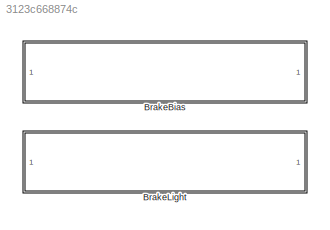
MODEL slx_3123c668874c
KIND library
CONFIG AbsTol = auto
CONFIG EnableMultiTasking = off
CONFIG FixedStep = auto
CONFIG MaxStep = auto
CONFIG MinStep = auto
CONFIG RelTol = 1e-3
CONFIG SampleTimeConstraint = Unconstrained
CONFIG SolverName = VariableStepAuto
CONFIG StartTime = 0.0
CONFIG StopTime = 10.0
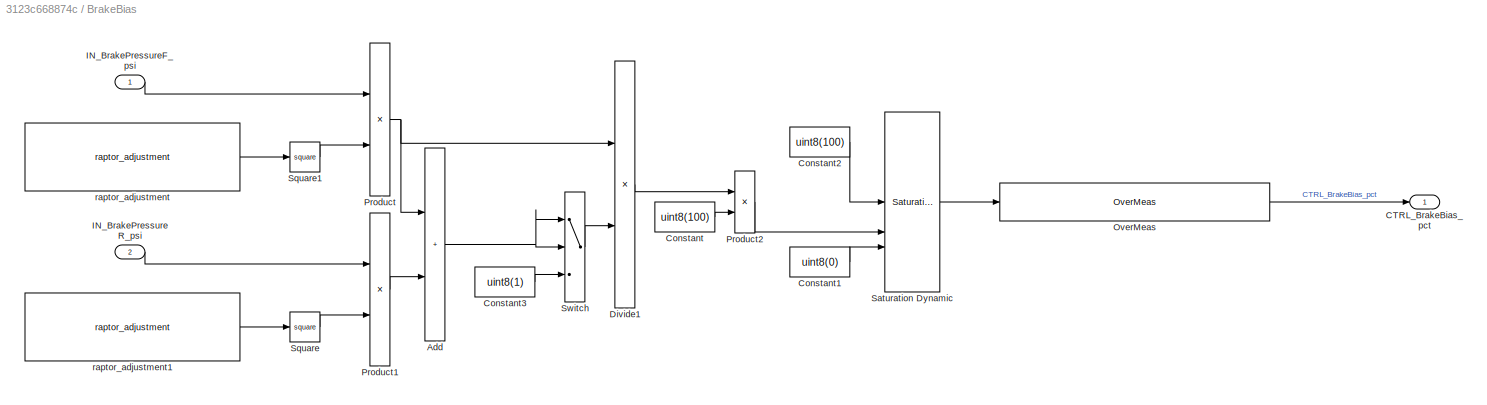
BLOCK [SubSystem] BrakeBias
BLOCK [Sum] BrakeBias/Add
  IconShape = rectangular
BLOCK [Outport] BrakeBias/CTRL_BrakeBias_pct
BLOCK [Constant] BrakeBias/Constant
  Value = uint8(100)
BLOCK [Constant] BrakeBias/Constant1
  Value = uint8(0)
BLOCK [Constant] BrakeBias/Constant2
  Value = uint8(100)
BLOCK [Constant] BrakeBias/Constant3
  Value = uint8(1)
BLOCK [Product] BrakeBias/Divide1
  Inputs = */
BLOCK [Inport] BrakeBias/IN_BrakePressureF_psi
BLOCK [Inport] BrakeBias/IN_BrakePressureR_psi
  Port = 2
BLOCK [Reference] BrakeBias/OverMeas  REF=Utilities/OverMeas
  SourceBlock = Utilities/OverMeas
BLOCK [Product] BrakeBias/Product
BLOCK [Product] BrakeBias/Product1
BLOCK [Product] BrakeBias/Product2
BLOCK [Reference] BrakeBias/Saturation Dynamic  REF=simulink/Discontinuities/Saturation
Dynamic
  SourceBlock = simulink/Discontinuities/Saturation\nDynamic
  SourceType = Saturation Dynamic
BLOCK [Math] BrakeBias/Square
  Operator = square
BLOCK [Math] BrakeBias/Square1
  Operator = square
BLOCK [Switch] BrakeBias/Switch
  Criteria = u2 ~= 0
  InputSameDT = off
  SaturateOnIntegerOverflow = off
BLOCK [Reference] BrakeBias/raptor_adjustment  REF=Raptor_lib/Data Storage/raptor_adjustment
  SourceBlock = Raptor_lib/Data Storage/raptor_adjustment
  SourceProductName = Raptor
  SourceType = Adjustment
BLOCK [Reference] BrakeBias/raptor_adjustment1  REF=Raptor_lib/Data Storage/raptor_adjustment
  SourceBlock = Raptor_lib/Data Storage/raptor_adjustment
  SourceProductName = Raptor
  SourceType = Adjustment
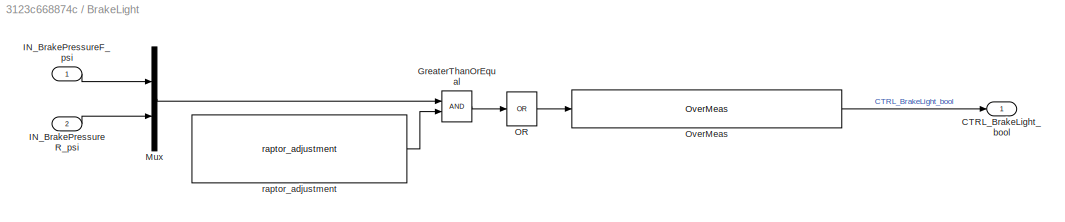
BLOCK [SubSystem] BrakeLight
BLOCK [Outport] BrakeLight/CTRL_BrakeLight_bool
BLOCK [RelationalOperator] BrakeLight/GreaterThanOrEqual
  InputSameDT = off
  OutDataTypeStr = boolean
  RndMeth = Simplest
BLOCK [Inport] BrakeLight/IN_BrakePressureF_psi
BLOCK [Inport] BrakeLight/IN_BrakePressureR_psi
  Port = 2
BLOCK [Mux] BrakeLight/Mux
  DisplayOption = bar
  Inputs = 2
BLOCK [Logic] BrakeLight/OR
  AllPortsSameDT = off
  Inputs = 1
  Operator = OR
  OutDataTypeStr = boolean
BLOCK [Reference] BrakeLight/OverMeas  REF=Utilities/OverMeas
  SourceBlock = Utilities/OverMeas
BLOCK [Reference] BrakeLight/raptor_adjustment  REF=Raptor_lib/Data Storage/raptor_adjustment
  SourceBlock = Raptor_lib/Data Storage/raptor_adjustment
  SourceProductName = Raptor
  SourceType = Adjustment
NET BrakeBias/Add:1 -> BrakeBias/Switch:1, BrakeBias/Switch:2
LINE BrakeBias/Constant1:1 -> BrakeBias/Saturation Dynamic:3
LINE BrakeBias/Constant2:1 -> BrakeBias/Saturation Dynamic:1
LINE BrakeBias/Constant3:1 -> BrakeBias/Switch:3
LINE BrakeBias/Constant:1 -> BrakeBias/Product2:2
LINE BrakeBias/Divide1:1 -> BrakeBias/Product2:1
LINE BrakeBias/IN_BrakePressureF_psi:1 -> BrakeBias/Product:1
LINE BrakeBias/IN_BrakePressureR_psi:1 -> BrakeBias/Product1:1
LINE BrakeBias/OverMeas:1 -> BrakeBias/CTRL_BrakeBias_pct:1
LINE BrakeBias/Product1:1 -> BrakeBias/Add:2
LINE BrakeBias/Product2:1 -> BrakeBias/Saturation Dynamic:2
NET BrakeBias/Product:1 -> BrakeBias/Add:1, BrakeBias/Divide1:1
LINE BrakeBias/Saturation Dynamic:1 -> BrakeBias/OverMeas:1
LINE BrakeBias/Square1:1 -> BrakeBias/Product:2
LINE BrakeBias/Square:1 -> BrakeBias/Product1:2
LINE BrakeBias/Switch:1 -> BrakeBias/Divide1:2
LINE BrakeBias/raptor_adjustment1:1 -> BrakeBias/Square:1
LINE BrakeBias/raptor_adjustment:1 -> BrakeBias/Square1:1
LINE BrakeLight/GreaterThanOrEqual:1 -> BrakeLight/OR:1
LINE BrakeLight/IN_BrakePressureF_psi:1 -> BrakeLight/Mux:1
LINE BrakeLight/IN_BrakePressureR_psi:1 -> BrakeLight/Mux:2
LINE BrakeLight/Mux:1 -> BrakeLight/GreaterThanOrEqual:1
LINE BrakeLight/OR:1 -> BrakeLight/OverMeas:1
LINE BrakeLight/OverMeas:1 -> BrakeLight/CTRL_BrakeLight_bool:1
LINE BrakeLight/raptor_adjustment:1 -> BrakeLight/GreaterThanOrEqual:2
note: NET lines group one-source signal fan-out (src -> all destinations, sorted); 1:1 wires keep LINE
